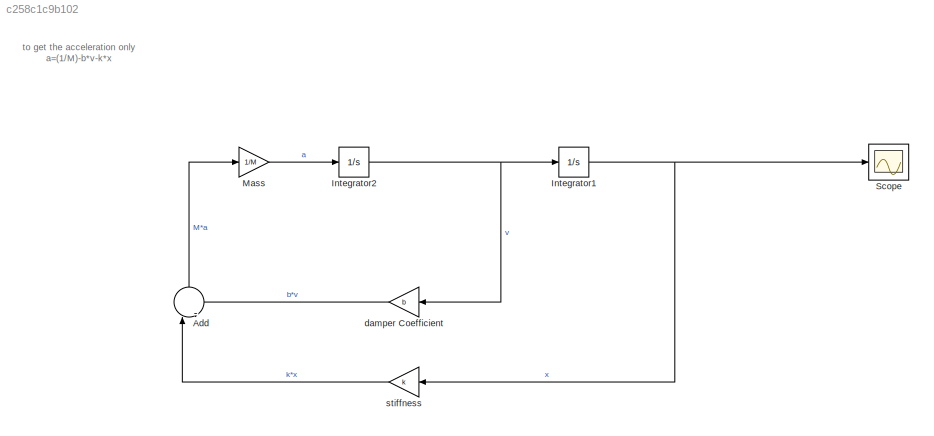
MODEL slx_c258c1c9b102
KIND model
CONFIG AbsTol = auto
CONFIG EnableMultiTasking = off
CONFIG FixedStep = auto
CONFIG MaxStep = 1e-3
CONFIG MinStep = auto
CONFIG RelTol = 1e-3
CONFIG SampleTimeConstraint = Unconstrained
CONFIG SolverName = VariableStepAuto
CONFIG StartTime = 0.0
CONFIG StopTime = 10.0
BLOCK [Sum] Add
  Inputs = |--
  NameLocation = right
BLOCK [Integrator] Integrator1
  InitialCondition = x0
BLOCK [Integrator] Integrator2
BLOCK [Gain] Mass
  Gain = 1/M
BLOCK [Scope] Scope
  Floating = off
  NumInputPorts = 1
  ScopeSpecificationString = Simulink.scopes.TimeScopeBlockCfg('CurrentConfiguration', extmgr.ConfigurationSet(extmgr.Configuration('Core','General UI',true),extmgr.Configuration('Core','Source UI',true),extmgr.Configuration('Sources','WiredSimulink',true),extmgr.Configuration('Visuals','Time Domain',true,'SerializedDisplays',{struct('MinYLimReal','-0.76834','MaxYLimReal','1.19648','YLabelReal','','MinYLimMag','0.00000','MaxY...<+1417ch>
BLOCK [Gain] damper Coefficient 
  Gain = b
  NameLocation = top
BLOCK [Gain] stiffness
  Gain = k
  NameLocation = top
ANNOTATION (root): to get the acceleration only a=(1/M)-b*v-k*x
LINE Add:1 -> Mass:1
NET Integrator1:1 -> Scope:1, stiffness:1
NET Integrator2:1 -> Integrator1:1, damper Coefficient :1
LINE Mass:1 -> Integrator2:1
LINE damper Coefficient :1 -> Add:2
LINE stiffness:1 -> Add:1
note: NET lines group one-source signal fan-out (src -> all destinations, sorted); 1:1 wires keep LINE
